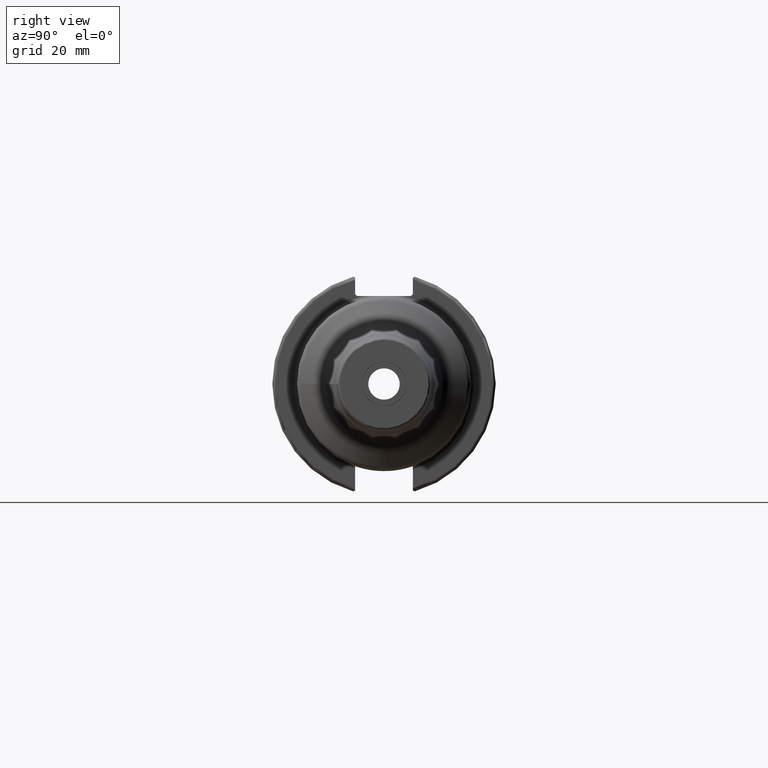
[diagram: clean part render]
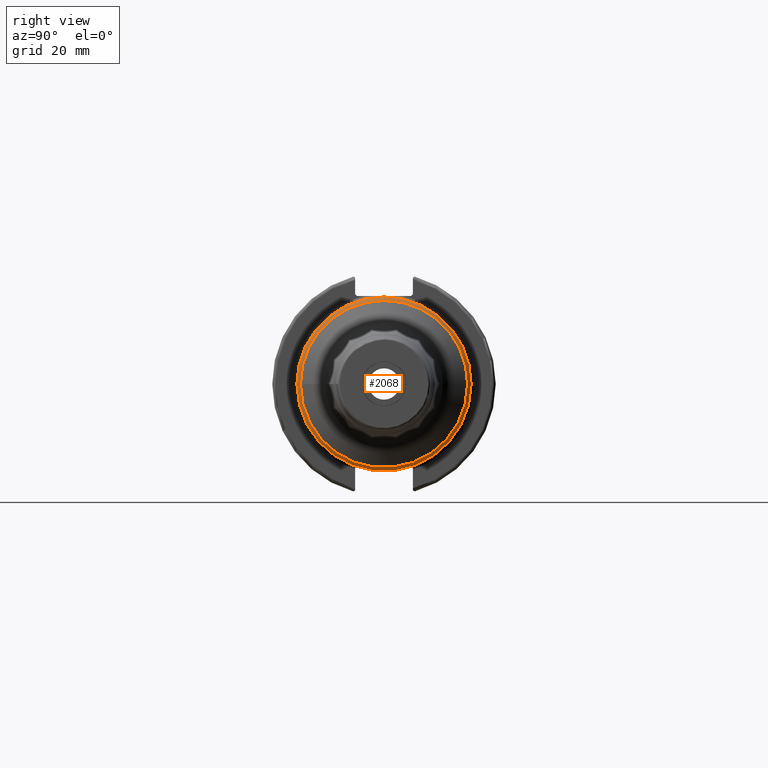
[diagram: same view with one face highlighted and labeled with its STEP entity id]
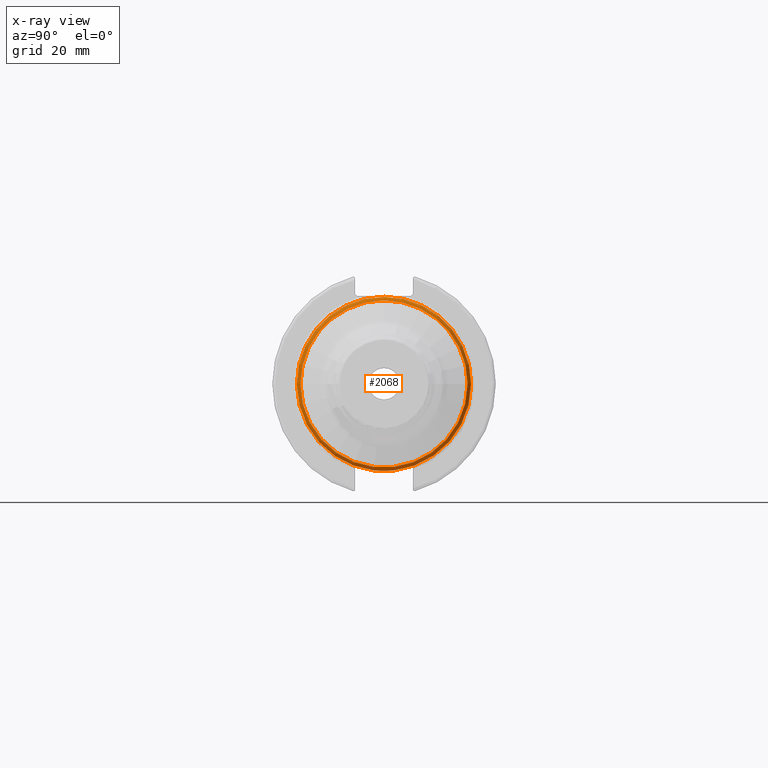
[diagram: x-ray of the same camera — body ghosted, the highlighted face saturated]
A machine part, right view. The second image highlights one B-rep face of the part: STEP entity #2068.
The next image is the same camera in x-ray: the body ghosted, the highlighted face saturated — about 0% of this face is hidden behind the body in this view.
In plain terms, the highlighted toroidal blend (fillet) surface has major radius 22.75 mm and minor (blend) radius 2 mm.
Its self-contained STEP definition (entity closure, byte-faithful):
#85=TOROIDAL_SURFACE('',#2207,22.75,2.);
#187=FACE_OUTER_BOUND('',#295,.T.);
#295=EDGE_LOOP('',(#1394,#1395,#1396,#1397,#1398,#1399,#1400,#1401));
#615=CIRCLE('',#2202,24.75);
#616=CIRCLE('',#2203,24.75);
#619=CIRCLE('',#2206,24.75);
#620=CIRCLE('',#2208,23.75);
#621=CIRCLE('',#2209,23.75);
#622=CIRCLE('',#2210,2.);
#623=CIRCLE('',#2211,23.75);
#795=VERTEX_POINT('',#3305);
#796=VERTEX_POINT('',#3306);
#797=VERTEX_POINT('',#3308);
#799=VERTEX_POINT('',#3316);
#800=VERTEX_POINT('',#3317);
#801=VERTEX_POINT('',#3319);
#1039=EDGE_CURVE('',#795,#796,#615,.T.);
#1040=EDGE_CURVE('',#797,#795,#616,.T.);
#1044=EDGE_CURVE('',#796,#797,#619,.T.);
#1045=EDGE_CURVE('',#799,#800,#620,.T.);
#1046=EDGE_CURVE('',#800,#801,#621,.T.);
#1047=EDGE_CURVE('',#801,#796,#622,.T.);
#1048=EDGE_CURVE('',#801,#799,#623,.T.);
#1394=ORIENTED_EDGE('',*,*,#1045,.T.);
#1395=ORIENTED_EDGE('',*,*,#1046,.T.);
#1396=ORIENTED_EDGE('',*,*,#1047,.T.);
#1397=ORIENTED_EDGE('',*,*,#1044,.T.);
#1398=ORIENTED_EDGE('',*,*,#1040,.T.);
#1399=ORIENTED_EDGE('',*,*,#1039,.T.);
#1400=ORIENTED_EDGE('',*,*,#1047,.F.);
#1401=ORIENTED_EDGE('',*,*,#1048,.T.);
#2068=ADVANCED_FACE('',(#187),#85,.T.);
#2202=AXIS2_PLACEMENT_3D('',#3307,#2519,#2520);
#2203=AXIS2_PLACEMENT_3D('',#3309,#2521,#2522);
#2206=AXIS2_PLACEMENT_3D('',#3314,#2528,#2529);
#2207=AXIS2_PLACEMENT_3D('',#3315,#2530,#2531);
#2208=AXIS2_PLACEMENT_3D('',#3318,#2532,#2533);
#2209=AXIS2_PLACEMENT_3D('',#3320,#2534,#2535);
#2210=AXIS2_PLACEMENT_3D('',#3321,#2536,#2537);
#2211=AXIS2_PLACEMENT_3D('',#3322,#2538,#2539);
#2519=DIRECTION('center_axis',(1.,0.,0.));
#2520=DIRECTION('ref_axis',(0.,-1.,1.83697019872103E-16));
#2521=DIRECTION('center_axis',(1.,0.,0.));
#2522=DIRECTION('ref_axis',(0.,-1.,1.83697019872103E-16));
#2528=DIRECTION('center_axis',(1.,0.,0.));
#2529=DIRECTION('ref_axis',(0.,-1.,1.83697019872103E-16));
#2530=DIRECTION('center_axis',(1.,0.,0.));
#2531=DIRECTION('ref_axis',(0.,0.,-1.));
#2532=DIRECTION('center_axis',(-1.,0.,0.));
#2533=DIRECTION('ref_axis',(0.,-1.,3.06161699786838E-17));
#2534=DIRECTION('center_axis',(-1.,0.,0.));
#2535=DIRECTION('ref_axis',(0.,-1.,3.06161699786838E-17));
#2536=DIRECTION('center_axis',(0.,-1.,-1.22464679914735E-16));
#2537=DIRECTION('ref_axis',(0.,-1.22464679914735E-16,1.));
#2538=DIRECTION('center_axis',(-1.,0.,0.));
#2539=DIRECTION('ref_axis',(0.,-1.,3.06161699786838E-17));
#3305=CARTESIAN_POINT('',(44.1794689820112,24.75,-1.51550041394485E-15));
#3306=CARTESIAN_POINT('',(44.1794689820112,-3.0310008278897E-15,24.75));
#3307=CARTESIAN_POINT('Origin',(44.1794689820112,0.,0.));
#3308=CARTESIAN_POINT('',(44.1794689820112,-24.75,-3.0310008278897E-15));
#3309=CARTESIAN_POINT('Origin',(44.1794689820112,0.,0.));
#3314=CARTESIAN_POINT('Origin',(44.1794689820112,0.,0.));
#3315=CARTESIAN_POINT('Origin',(44.1794689820112,0.,0.));
#3316=CARTESIAN_POINT('',(45.9115197895801,23.75,-7.27134036993741E-15));
#3317=CARTESIAN_POINT('',(45.9115197895801,-23.75,-2.90853614797496E-15));
#3318=CARTESIAN_POINT('Origin',(45.9115197895801,0.,-3.6356701849687E-15));
#3319=CARTESIAN_POINT('',(45.9115197895801,-2.90853614797496E-15,23.75));
#3320=CARTESIAN_POINT('Origin',(45.9115197895801,0.,-3.6356701849687E-15));
#3321=CARTESIAN_POINT('Origin',(44.1794689820112,-2.78607146806023E-15,
22.75));
#3322=CARTESIAN_POINT('Origin',(45.9115197895801,0.,-3.6356701849687E-15));